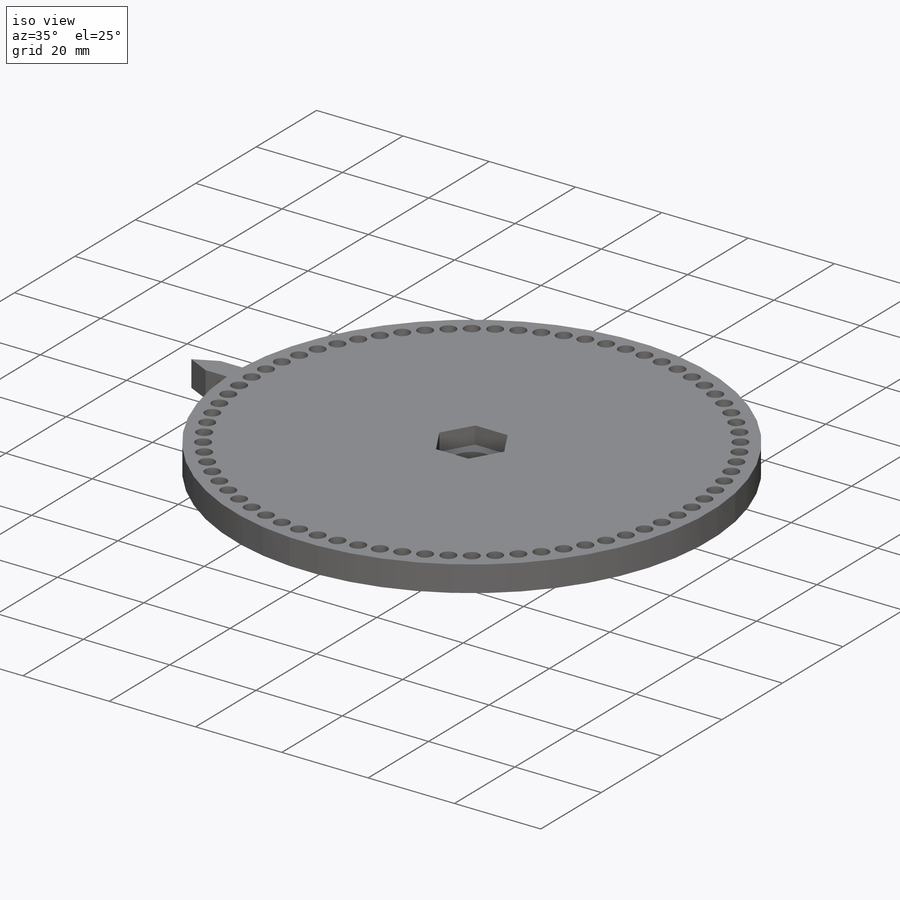
[diagram: iso view]
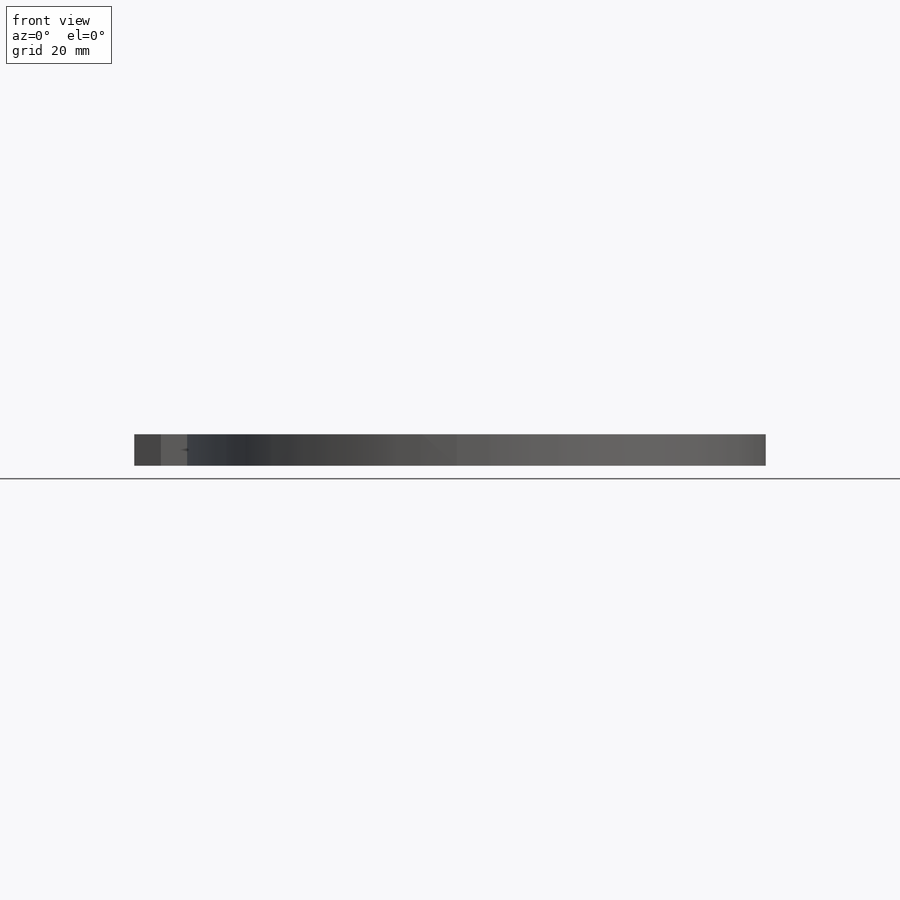
[diagram: front view]
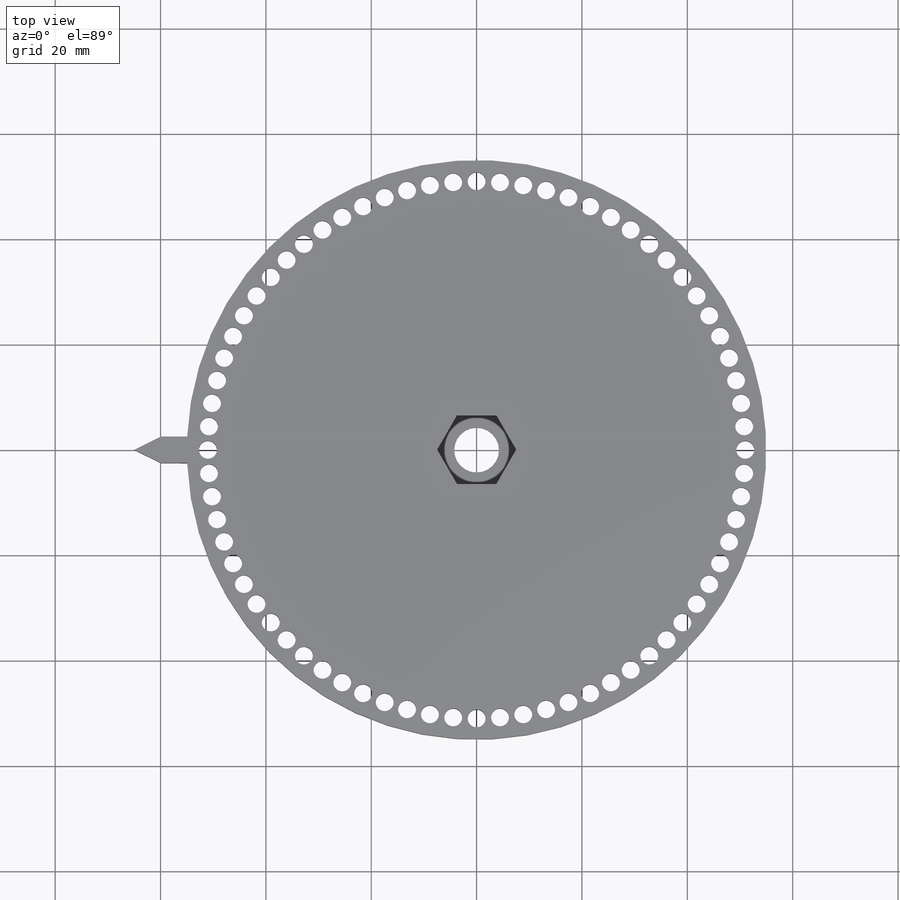
[diagram: top view]
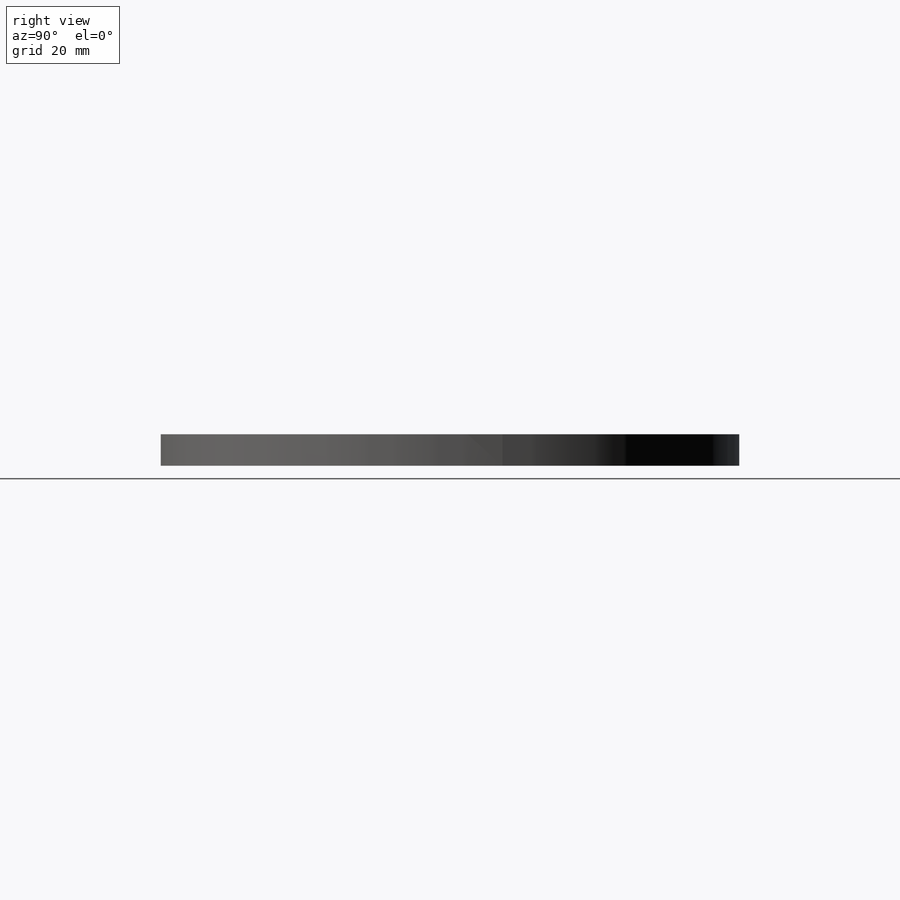
[diagram: right view]
SOLIDWORKS PART (.sldprt)
format: sldprt  version: not decoded by parser v0  size: 361,984 bytes
history: native  units: mm
features: sketch x5, cut_extrude x3, extrude x2, material x1, pattern_circular x1 (+11 scaffold rows collapsed)
feature tree (23):
  scaffold x11  (default folders/planes/origin — collapsed)
  material  "ABS PC"
  sketch  "Sketch1"  dims[c1.D2=10.0mm c1.D3=3.4mm c1.D1=24.0mm c2.D2=40.0mm]
  extrude  "Boss-Extrude1"  Depth=6mm
  sketch  "Sketch2"  dims[D1=13.0mm]
  cut_extrude  "Cut-Extrude1"  Depth=4mm
  sketch  "Sketch3"  dims[c1.D1=3.4mm c1.D2=3.4mm c1.D3=3.4mm c1.D5=8.5mm c2.D2=51.0mm c2.D3=0.0mm]
  cut_extrude  "Cut-Extrude2"  [1 undecoded]
  pattern_circular  "CirPattern1"  Count=72 Angle=5deg
  sketch  "Sketch4"  dims[D1=8.5mm]
  cut_extrude  "Cut-Extrude3"  [1 undecoded]
  sketch  "Sketch5"  dims[c1.D1=5.0mm c1.D2=4.0mm c1.D3=1.0mm c1.D4=5.0mm c1.D5=~22.494447mm c2.D2=5.0mm c2.D3=2.5mm c2.D5=5.0mm c2.D1=65.0mm]
  extrude  "Boss-Extrude2"  Depth=6mm
decode coverage: 9 of 11 modeling features carry decoded parameters
note: ~ marks probable driven/reference dimensions
note: 2 parameter values undecoded
note: suppression state not decoded; provenance and decode notes live in map.json
